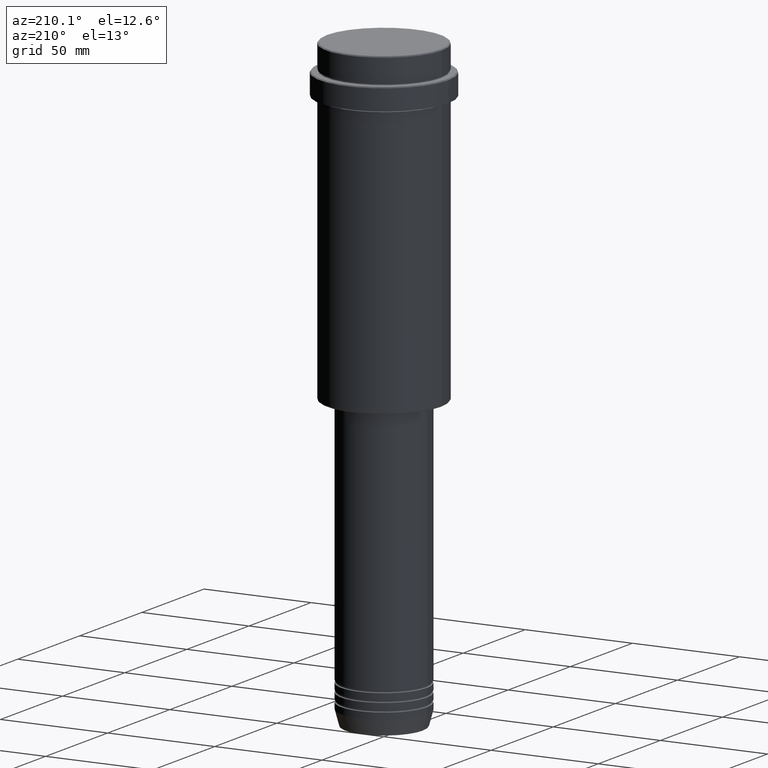
[diagram: clean part render]
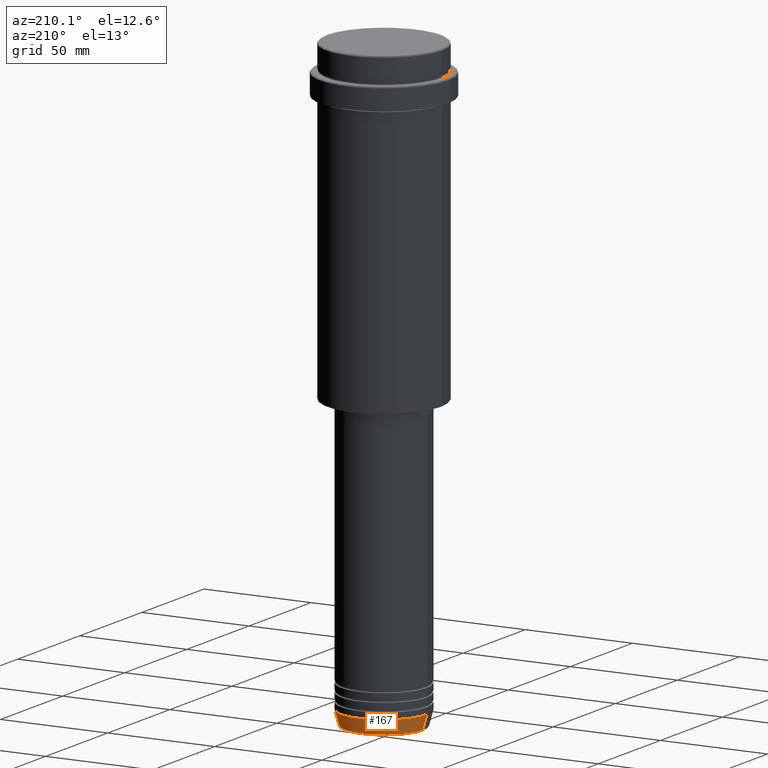
[diagram: same view with one face highlighted and labeled with its STEP entity id]
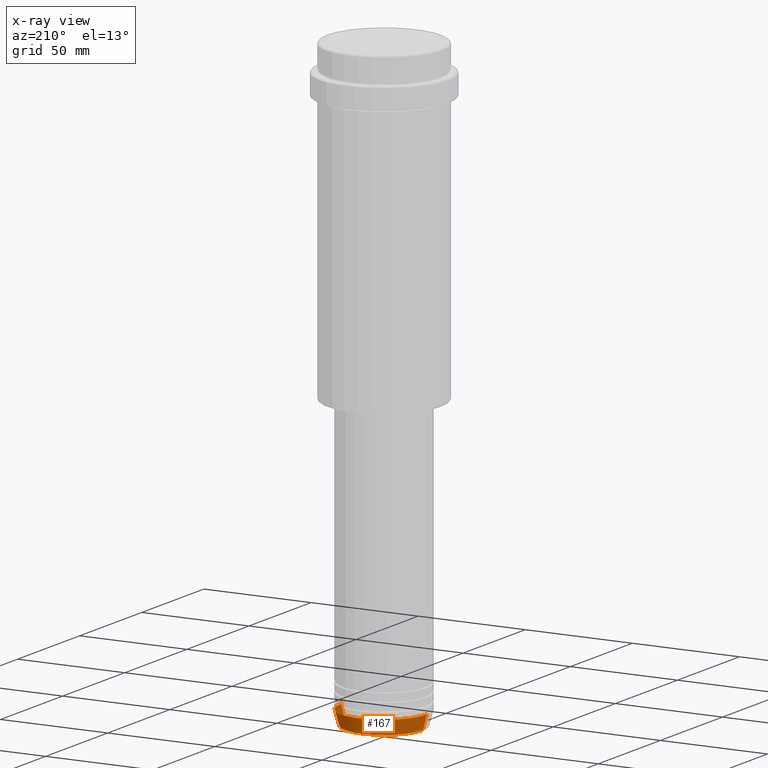
[diagram: x-ray of the same camera — body ghosted, the highlighted face saturated]
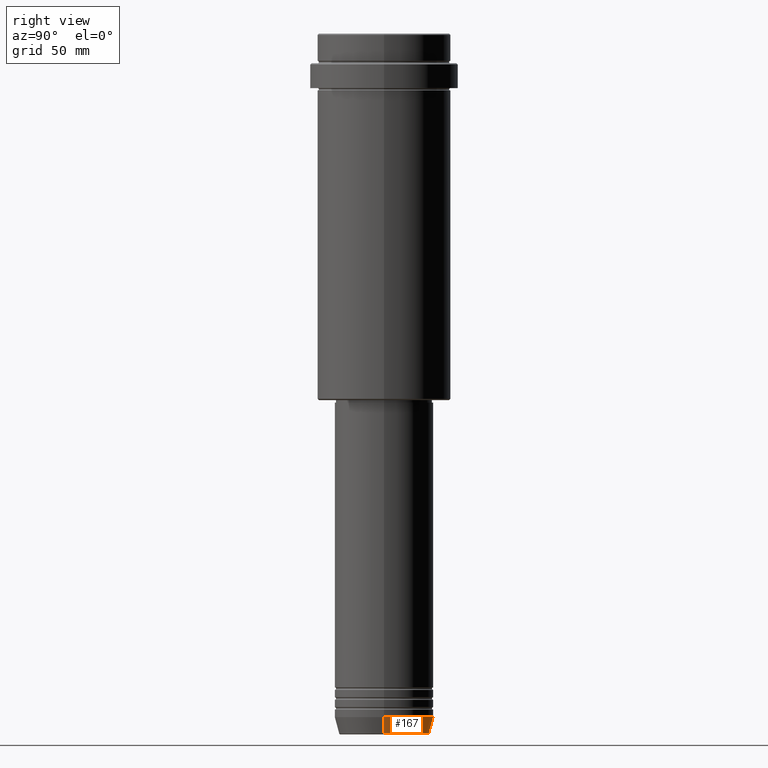
[diagram: same view with one face highlighted and labeled with its STEP entity id]
A machine part, auxiliary view. The second image highlights one B-rep face of the part: STEP entity #167.
The next image is the same camera in x-ray: the body ghosted, the highlighted face saturated — about 0% of this face is hidden behind the body in this view.
A second angle (right view) of the same face is appended — the face is thin or edge-on in the first view.
In plain terms, the highlighted conical surface has half-angle 15 deg.
Its self-contained STEP definition (entity closure, byte-faithful):
#19 = EDGE_CURVE ( 'NONE', #1067, #557, #295, .T. ) ;
#39 = DIRECTION ( 'NONE',  ( 0.2588190451025213501, 0.000000000000000000, 0.9659258262890680902 ) ) ;
#53 = DIRECTION ( 'NONE',  ( 1.000000000000000000, 0.000000000000000000, 0.000000000000000000 ) ) ;
#72 = ORIENTED_EDGE ( 'NONE', *, *, #1401, .F. ) ;
#98 = VERTEX_POINT ( 'NONE', #1252 ) ;
#135 = AXIS2_PLACEMENT_3D ( 'NONE', #598, #917, #53 ) ;
#159 = CARTESIAN_POINT ( 'NONE',  ( 0.000000000000000000, 0.000000000000000000, -276.0000000000000000 ) ) ;
#167 = ADVANCED_FACE ( 'NONE', ( #1368 ), #346, .T. ) ;
#173 = ORIENTED_EDGE ( 'NONE', *, *, #1372, .T. ) ;
#200 = EDGE_LOOP ( 'NONE', ( #173, #693, #539, #72 ) ) ;
#260 = LINE ( 'NONE', #1133, #1347 ) ;
#265 = DIRECTION ( 'NONE',  ( -0.000000000000000000, -0.000000000000000000, 1.000000000000000000 ) ) ;
#283 = CARTESIAN_POINT ( 'NONE',  ( -18.22365507213718772, 2.340523841790264718E-15, -282.6294095225512706 ) ) ;
#295 = CIRCLE ( 'NONE', #654, 20.00000000000000000 ) ;
#300 = CARTESIAN_POINT ( 'NONE',  ( -20.00000000000000000, 2.449293598294706513E-15, -276.0000000000000000 ) ) ;
#346 = CONICAL_SURFACE ( 'NONE', #517, 20.00000000000000000, 0.2617993877991500740 ) ;
#418 = CARTESIAN_POINT ( 'NONE',  ( 20.00000000000000000, 0.000000000000000000, -276.0000000000000000 ) ) ;
#473 = CARTESIAN_POINT ( 'NONE',  ( -20.00000000000000000, 2.449293598294706513E-15, -276.0000000000000000 ) ) ;
#517 = AXIS2_PLACEMENT_3D ( 'NONE', #700, #265, #1148 ) ;
#539 = ORIENTED_EDGE ( 'NONE', *, *, #19, .F. ) ;
#557 = VERTEX_POINT ( 'NONE', #473 ) ;
#566 = VECTOR ( 'NONE', #1177, 1000.000000000000000 ) ;
#572 = DIRECTION ( 'NONE',  ( -0.000000000000000000, -0.000000000000000000, 1.000000000000000000 ) ) ;
#598 = CARTESIAN_POINT ( 'NONE',  ( 0.000000000000000000, 0.000000000000000000, -282.6294095225512706 ) ) ;
#654 = AXIS2_PLACEMENT_3D ( 'NONE', #159, #572, #1131 ) ;
#693 = ORIENTED_EDGE ( 'NONE', *, *, #936, .T. ) ;
#700 = CARTESIAN_POINT ( 'NONE',  ( 0.000000000000000000, 0.000000000000000000, -276.0000000000000000 ) ) ;
#917 = DIRECTION ( 'NONE',  ( -0.000000000000000000, -0.000000000000000000, 1.000000000000000000 ) ) ;
#936 = EDGE_CURVE ( 'NONE', #1275, #557, #1386, .T. ) ;
#954 = CIRCLE ( 'NONE', #135, 18.22365507213718772 ) ;
#1067 = VERTEX_POINT ( 'NONE', #418 ) ;
#1131 = DIRECTION ( 'NONE',  ( 1.000000000000000000, 0.000000000000000000, 0.000000000000000000 ) ) ;
#1133 = CARTESIAN_POINT ( 'NONE',  ( 20.00000000000000000, 0.000000000000000000, -276.0000000000000000 ) ) ;
#1148 = DIRECTION ( 'NONE',  ( 1.000000000000000000, 0.000000000000000000, 0.000000000000000000 ) ) ;
#1177 = DIRECTION ( 'NONE',  ( -0.2588190451025213501, 3.169619151431772337E-17, 0.9659258262890680902 ) ) ;
#1252 = CARTESIAN_POINT ( 'NONE',  ( 18.22365507213718772, 0.000000000000000000, -282.6294095225512706 ) ) ;
#1275 = VERTEX_POINT ( 'NONE', #283 ) ;
#1347 = VECTOR ( 'NONE', #39, 1000.000000000000000 ) ;
#1368 = FACE_OUTER_BOUND ( 'NONE', #200, .T. ) ;
#1372 = EDGE_CURVE ( 'NONE', #98, #1275, #954, .T. ) ;
#1386 = LINE ( 'NONE', #300, #566 ) ;
#1401 = EDGE_CURVE ( 'NONE', #98, #1067, #260, .T. ) ;